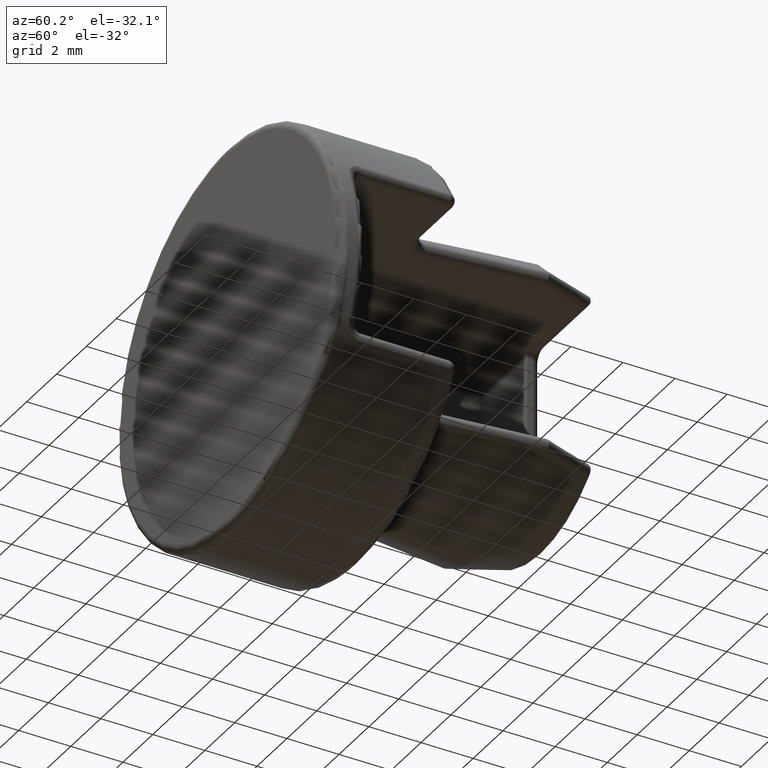
[diagram: clean part render]
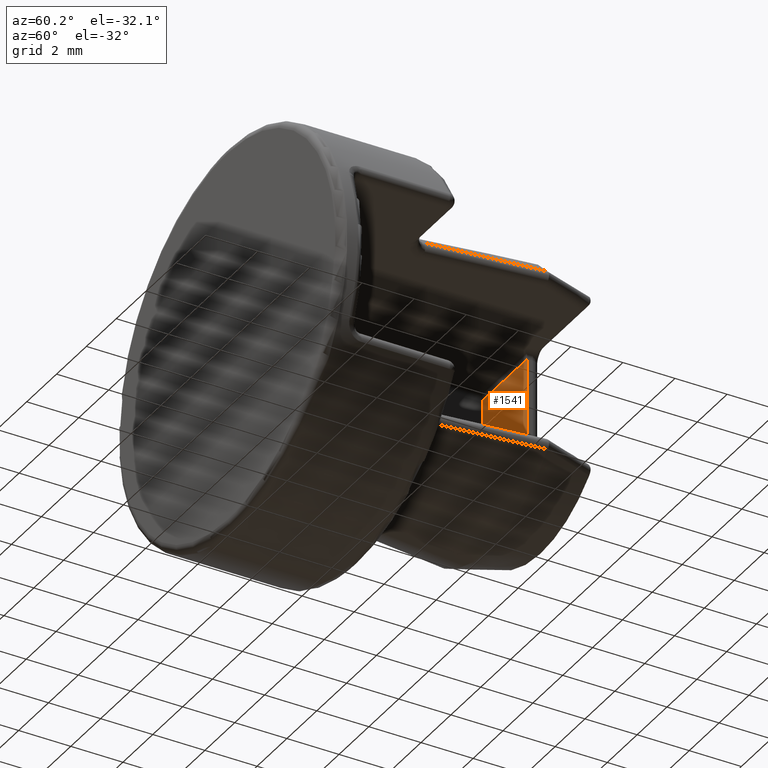
[diagram: same view with one face highlighted and labeled with its STEP entity id]
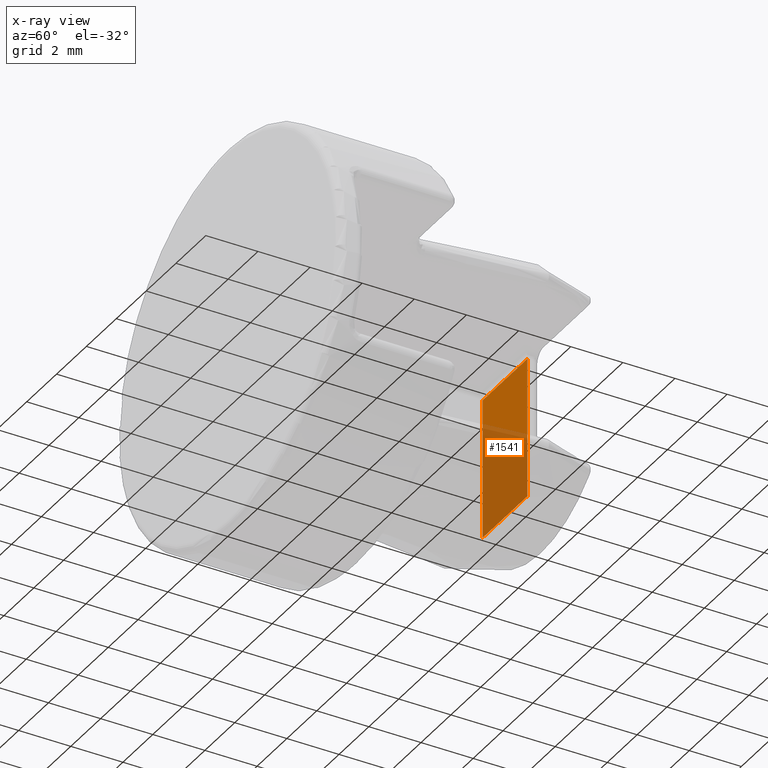
[diagram: x-ray of the same camera — body ghosted, the highlighted face saturated]
A machine part, auxiliary view. The second image highlights one B-rep face of the part: STEP entity #1541.
The next image is the same camera in x-ray: the body ghosted, the highlighted face saturated — about 64% of this face is hidden behind the body in this view.
In plain terms, the highlighted planar face has unit normal (0, 1, 0).
Its self-contained STEP definition (entity closure, byte-faithful):
#55 = DIRECTION ( 'NONE',  ( -1.000000000000000000, 0.0000000000000000000, 0.0000000000000000000 ) ) ;
#56 = VECTOR ( 'NONE', #55, 1000.000000000000000 ) ;
#57 = CARTESIAN_POINT ( 'NONE',  ( -3.000000000000000000, 11.50000000000000000, 2.700000000000001100 ) ) ;
#58 = LINE ( 'NONE', #57, #56 ) ;
#1179 = CARTESIAN_POINT ( 'NONE',  ( 2.710505431213761100E-017, 11.50000000000000000, -2.700000000000001100 ) ) ;
#1239 = CARTESIAN_POINT ( 'NONE',  ( -3.000000000000000000, 11.50000000000000000, -2.700000000000000600 ) ) ;
#1240 = DIRECTION ( 'NONE',  ( -0.0000000000000000000, -0.0000000000000000000, 1.000000000000000000 ) ) ;
#1241 = VECTOR ( 'NONE', #1240, 1000.000000000000000 ) ;
#1242 = CARTESIAN_POINT ( 'NONE',  ( -3.000000000000000000, 11.50000000000000000, 3.000000000000000000 ) ) ;
#1243 = LINE ( 'NONE', #1242, #1241 ) ;
#1244 = CARTESIAN_POINT ( 'NONE',  ( -2.999999999999999100, 11.50000000000000200, 2.700000000000001100 ) ) ;
#1397 = EDGE_CURVE ( 'NONE', #1398, #1448, #2522, .T. ) ;
#1398 = VERTEX_POINT ( 'NONE', #2417 ) ;
#1434 = VERTEX_POINT ( 'NONE', #1244 ) ;
#1435 = ORIENTED_EDGE ( 'NONE', *, *, #1436, .F. ) ;
#1436 = EDGE_CURVE ( 'NONE', #1437, #1434, #1243, .T. ) ;
#1437 = VERTEX_POINT ( 'NONE', #1239 ) ;
#1438 = ORIENTED_EDGE ( 'NONE', *, *, #1580, .T. ) ;
#1448 = VERTEX_POINT ( 'NONE', #1179 ) ;
#1533 = ORIENTED_EDGE ( 'NONE', *, *, #1397, .F. ) ;
#1541 = ADVANCED_FACE ( 'NONE', ( #2981 ), #2958, .F. ) ;
#1580 = EDGE_CURVE ( 'NONE', #1437, #1448, #3151, .T. ) ;
#1595 = EDGE_LOOP ( 'NONE', ( #1596, #1435, #1438, #1533 ) ) ;
#1596 = ORIENTED_EDGE ( 'NONE', *, *, #1635, .T. ) ;
#1635 = EDGE_CURVE ( 'NONE', #1398, #1434, #58, .T. ) ;
#2381 = DIRECTION ( 'NONE',  ( -0.0000000000000000000, 0.0000000000000000000, -1.000000000000000000 ) ) ;
#2417 = CARTESIAN_POINT ( 'NONE',  ( 2.710505431213761100E-017, 11.50000000000000000, 2.700000000000001100 ) ) ;
#2497 = CARTESIAN_POINT ( 'NONE',  ( 0.0000000000000000000, 11.50000000000000000, 3.000000000000000900 ) ) ;
#2510 = VECTOR ( 'NONE', #2381, 1000.000000000000000 ) ;
#2522 = LINE ( 'NONE', #2497, #2510 ) ;
#2958 = PLANE ( 'NONE',  #3015 ) ;
#2981 = FACE_OUTER_BOUND ( 'NONE', #1595, .T. ) ;
#3013 = DIRECTION ( 'NONE',  ( 0.0000000000000000000, 1.000000000000000000, 0.0000000000000000000 ) ) ;
#3014 = CARTESIAN_POINT ( 'NONE',  ( -3.000000000000000000, 11.50000000000000000, 3.000000000000000900 ) ) ;
#3015 = AXIS2_PLACEMENT_3D ( 'NONE', #3014, #3013, #3023 ) ;
#3023 = DIRECTION ( 'NONE',  ( 0.0000000000000000000, -0.0000000000000000000, 1.000000000000000000 ) ) ;
#3149 = VECTOR ( 'NONE', #3158, 1000.000000000000000 ) ;
#3150 = CARTESIAN_POINT ( 'NONE',  ( -3.000000000000000000, 11.50000000000000000, -2.700000000000001100 ) ) ;
#3151 = LINE ( 'NONE', #3150, #3149 ) ;
#3158 = DIRECTION ( 'NONE',  ( 1.000000000000000000, -0.0000000000000000000, -0.0000000000000000000 ) ) ;